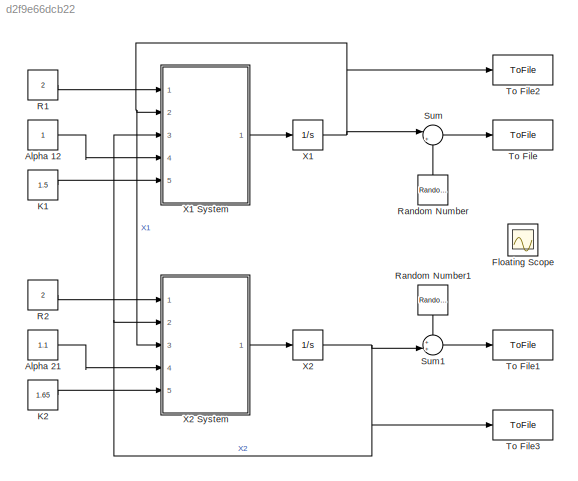
MODEL slx_d2f9e66dcb22
KIND model
CONFIG AbsTol = auto
CONFIG EnableMultiTasking = off
CONFIG FixedStep = 0.1
CONFIG MaxStep = auto
CONFIG MinStep = auto
CONFIG RelTol = 1e-3
CONFIG SampleTimeConstraint = Unconstrained
CONFIG Solver = FixedStepAuto
CONFIG SolverName = FixedStepAuto
CONFIG StartTime = 0.0
CONFIG StopTime = 50
BLOCK [Constant] Alpha 12
BLOCK [Constant] Alpha 21
  Value = 1.1
BLOCK [Scope] Floating Scope
  Floating = on
  NumInputPorts = 1
  Ports = []
  ScopeSpecificationString = Simulink.scopes.TimeScopeBlockCfg('CurrentConfiguration', extmgr.ConfigurationSet(extmgr.Configuration('Core','General UI',true),extmgr.Configuration('Core','Source UI',true),extmgr.Configuration('Sources','WiredSimulink',true),extmgr.Configuration('Visuals','Time Domain',true,'SerializedDisplays',{struct('MinYLimReal','-0.16587','MaxYLimReal','1.6928','YLabelReal','','MinYLimMag','0.00000','MaxYL...<+1416ch>
BLOCK [Constant] K1
  Value = 1.5
BLOCK [Constant] K2
  Value = 1.65
BLOCK [Constant] R1
  Value = 2
BLOCK [Constant] R2
  Value = 2
BLOCK [RandomNumber] Random Number
  SampleTime = 0.1
  Variance = 0.0000
BLOCK [RandomNumber] Random Number1
  SampleTime = 0.1
  Variance = 0.0000
BLOCK [Sum] Sum
  IconShape = round
  InputSameDT = off
  Inputs = |++
  OutDataTypeStr = Inherit: Inherit via internal rule
  Ports = [2, 1]
  SaturateOnIntegerOverflow = off
BLOCK [Sum] Sum1
  IconShape = round
  InputSameDT = off
  Inputs = ++|
  OutDataTypeStr = Inherit: Inherit via internal rule
  Ports = [2, 1]
  SaturateOnIntegerOverflow = off
BLOCK [ToFile] To File
  Filename = X1_Noisy.mat
  MatrixName = speciesOne_Noisy
  Ports = [1]
BLOCK [ToFile] To File1
  Filename = X2_Noisy.mat
  MatrixName = speciesTwo_Noisy
  Ports = [1]
BLOCK [ToFile] To File2
  Filename = X1_Clean.mat
  MatrixName = speciesOne_Clean
  Ports = [1]
BLOCK [ToFile] To File3
  Filename = X2_Clean.mat
  MatrixName = speciesTwo_Clean
  Ports = [1]
BLOCK [Integrator] X1
  InitialCondition = 0.10
  LimitOutput = on
  LowerSaturationLimit = 0
  Ports = [1, 1]
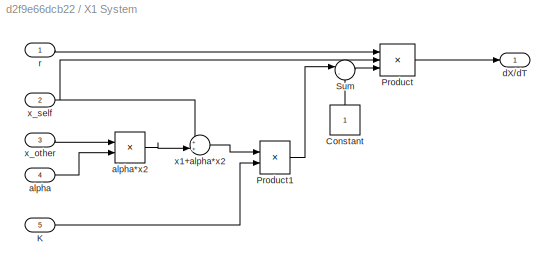
BLOCK [SubSystem] X1 System
  Ports = [5, 1]
  RequestExecContextInheritance = off
BLOCK [Constant] X1 System/Constant
BLOCK [Inport] X1 System/K
  IconDisplay = Port number
  Port = 5
BLOCK [Product] X1 System/Product
  InputSameDT = off
  Inputs = 3
  OutDataTypeStr = Inherit: Inherit via internal rule
  Ports = [3, 1]
  RndMeth = Floor
  SaturateOnIntegerOverflow = off
BLOCK [Product] X1 System/Product1
  InputSameDT = off
  Inputs = */
  OutDataTypeStr = Inherit: Inherit via internal rule
  Ports = [2, 1]
  RndMeth = Floor
  SaturateOnIntegerOverflow = off
BLOCK [Sum] X1 System/Sum
  IconShape = round
  InputSameDT = off
  Inputs = |-+
  OutDataTypeStr = Inherit: Inherit via internal rule
  Ports = [2, 1]
  SaturateOnIntegerOverflow = off
BLOCK [Inport] X1 System/alpha
  IconDisplay = Port number
  Port = 4
BLOCK [Product] X1 System/alpha*x2
  InputSameDT = off
  OutDataTypeStr = Inherit: Inherit via internal rule
  Ports = [2, 1]
  RndMeth = Floor
  SaturateOnIntegerOverflow = off
BLOCK [Outport] X1 System/dX//dT
  IconDisplay = Port number
BLOCK [Inport] X1 System/r
  IconDisplay = Signal name
BLOCK [Sum] X1 System/x1+alpha*x2
  IconShape = round
  InputSameDT = off
  Inputs = ++|
  OutDataTypeStr = Inherit: Inherit via internal rule
  Ports = [2, 1]
  SaturateOnIntegerOverflow = off
BLOCK [Inport] X1 System/x_other
  IconDisplay = Port number
  Port = 3
BLOCK [Inport] X1 System/x_self
  IconDisplay = Port number
  Port = 2
BLOCK [Integrator] X2
  InitialCondition = 0.02
  LimitOutput = on
  LowerSaturationLimit = 0
  Ports = [1, 1]
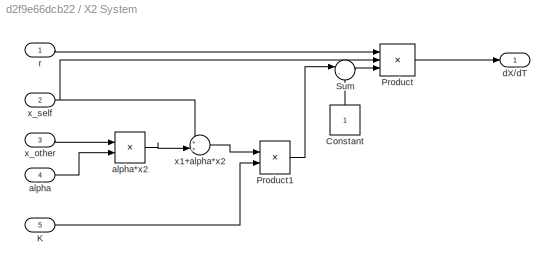
BLOCK [SubSystem] X2 System
  Ports = [5, 1]
  RequestExecContextInheritance = off
BLOCK [Constant] X2 System/Constant
BLOCK [Inport] X2 System/K
  IconDisplay = Port number
  Port = 5
BLOCK [Product] X2 System/Product
  InputSameDT = off
  Inputs = 3
  OutDataTypeStr = Inherit: Inherit via internal rule
  Ports = [3, 1]
  RndMeth = Floor
  SaturateOnIntegerOverflow = off
BLOCK [Product] X2 System/Product1
  InputSameDT = off
  Inputs = */
  OutDataTypeStr = Inherit: Inherit via internal rule
  Ports = [2, 1]
  RndMeth = Floor
  SaturateOnIntegerOverflow = off
BLOCK [Sum] X2 System/Sum
  IconShape = round
  InputSameDT = off
  Inputs = |-+
  OutDataTypeStr = Inherit: Inherit via internal rule
  Ports = [2, 1]
  SaturateOnIntegerOverflow = off
BLOCK [Inport] X2 System/alpha
  IconDisplay = Port number
  Port = 4
BLOCK [Product] X2 System/alpha*x2
  InputSameDT = off
  OutDataTypeStr = Inherit: Inherit via internal rule
  Ports = [2, 1]
  RndMeth = Floor
  SaturateOnIntegerOverflow = off
BLOCK [Outport] X2 System/dX//dT
  IconDisplay = Port number
BLOCK [Inport] X2 System/r
  IconDisplay = Signal name
BLOCK [Sum] X2 System/x1+alpha*x2
  IconShape = round
  InputSameDT = off
  Inputs = ++|
  OutDataTypeStr = Inherit: Inherit via internal rule
  Ports = [2, 1]
  SaturateOnIntegerOverflow = off
BLOCK [Inport] X2 System/x_other
  IconDisplay = Port number
  Port = 3
BLOCK [Inport] X2 System/x_self
  IconDisplay = Port number
  Port = 2
LINE Alpha 12:1 -> X1 System:4
LINE Alpha 21:1 -> X2 System:4
LINE K1:1 -> X1 System:5
LINE K2:1 -> X2 System:5
LINE R1:1 -> X1 System:1
LINE R2:1 -> X2 System:1
LINE Random Number1:1 -> Sum1:1
LINE Random Number:1 -> Sum:2
LINE Sum1:1 -> To File1:1
LINE Sum:1 -> To File:1
LINE X1 System/Constant:1 -> X1 System/Sum:2
LINE X1 System/K:1 -> X1 System/Product1:2
LINE X1 System/Product1:1 -> X1 System/Sum:1
LINE X1 System/Product:1 -> X1 System/dX//dT:1
LINE X1 System/Sum:1 -> X1 System/Product:3
LINE X1 System/alpha*x2:1 -> X1 System/x1+alpha*x2:2
LINE X1 System/alpha:1 -> X1 System/alpha*x2:2
LINE X1 System/r:1 -> X1 System/Product:1
LINE X1 System/x1+alpha*x2:1 -> X1 System/Product1:1
LINE X1 System/x_other:1 -> X1 System/alpha*x2:1
NET X1 System/x_self:1 -> X1 System/Product:2, X1 System/x1+alpha*x2:1
LINE X1 System:1 -> X1:1
NET X1:1 -> Sum:1, To File2:1, X1 System:2, X2 System:3
LINE X2 System/Constant:1 -> X2 System/Sum:2
LINE X2 System/K:1 -> X2 System/Product1:2
LINE X2 System/Product1:1 -> X2 System/Sum:1
LINE X2 System/Product:1 -> X2 System/dX//dT:1
LINE X2 System/Sum:1 -> X2 System/Product:3
LINE X2 System/alpha*x2:1 -> X2 System/x1+alpha*x2:2
LINE X2 System/alpha:1 -> X2 System/alpha*x2:2
LINE X2 System/r:1 -> X2 System/Product:1
LINE X2 System/x1+alpha*x2:1 -> X2 System/Product1:1
LINE X2 System/x_other:1 -> X2 System/alpha*x2:1
NET X2 System/x_self:1 -> X2 System/Product:2, X2 System/x1+alpha*x2:1
LINE X2 System:1 -> X2:1
NET X2:1 -> Sum1:2, To File3:1, X1 System:3, X2 System:2
note: NET lines group one-source signal fan-out (src -> all destinations, sorted); 1:1 wires keep LINE
